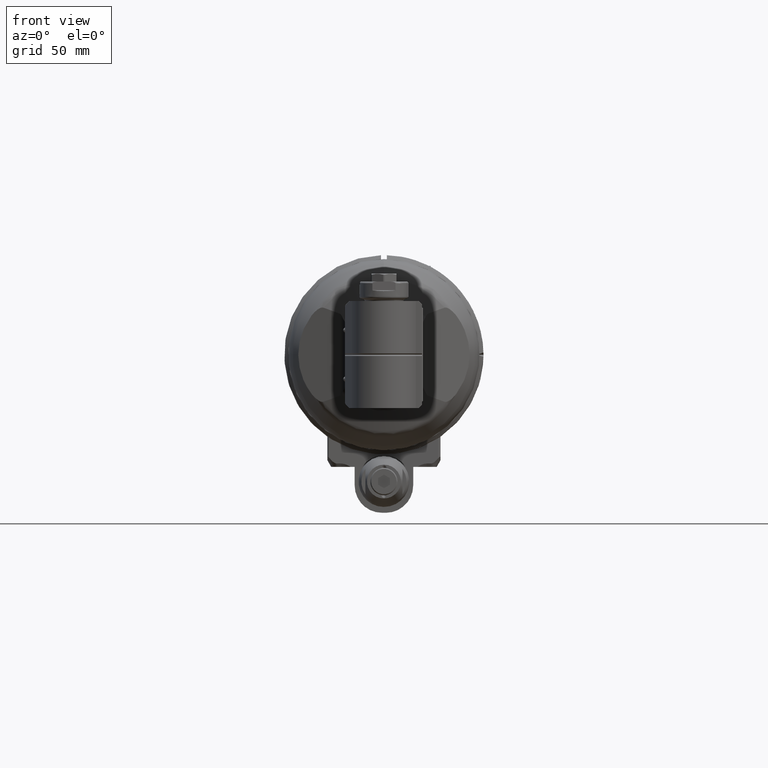
[diagram: clean part render]
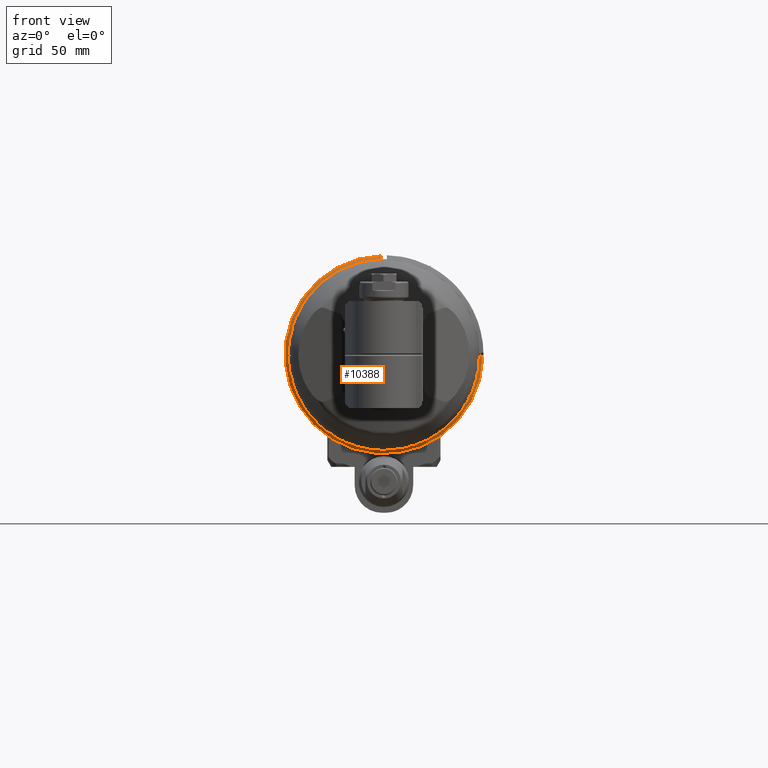
[diagram: same view with one face highlighted and labeled with its STEP entity id]
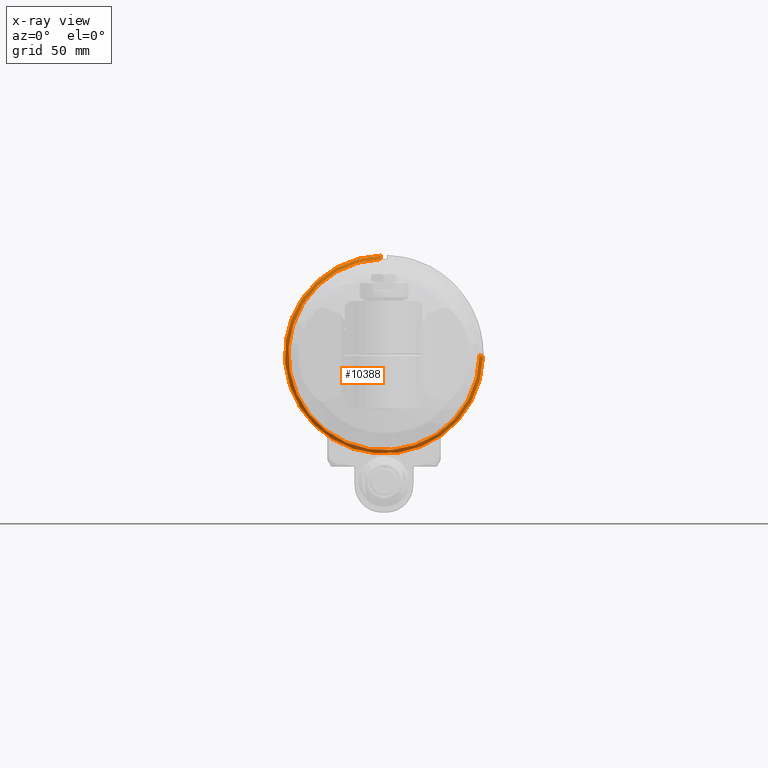
[diagram: x-ray of the same camera — body ghosted, the highlighted face saturated]
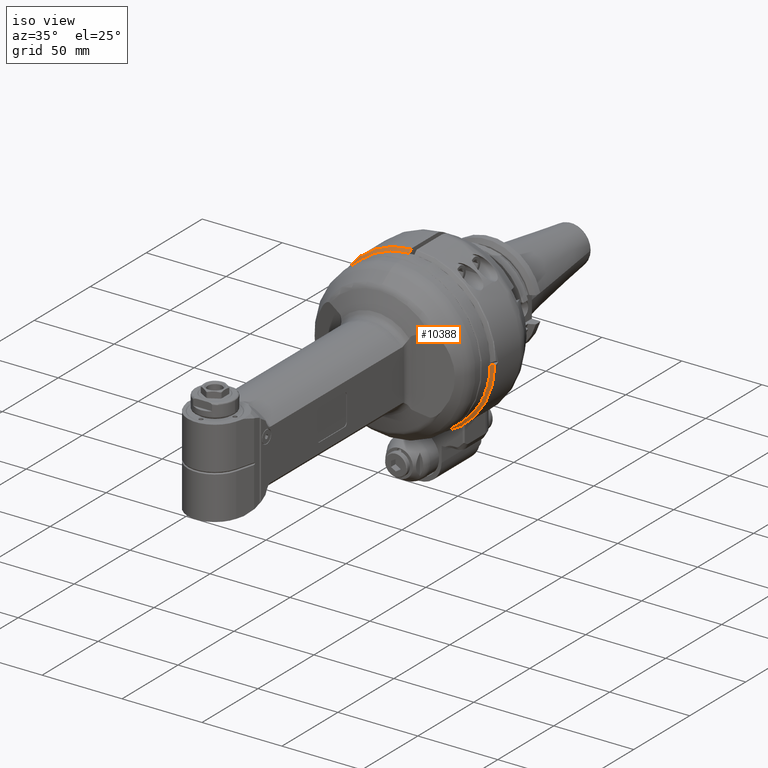
[diagram: same view with one face highlighted and labeled with its STEP entity id]
A machine part, front view. The second image highlights one B-rep face of the part: STEP entity #10388.
The next image is the same camera in x-ray: the body ghosted, the highlighted face saturated — about 0% of this face is hidden behind the body in this view.
A second angle (iso view) of the same face is appended — the face is thin or edge-on in the first view.
In plain terms, the highlighted conical surface has half-angle 45 deg.
Its self-contained STEP definition (entity closure, byte-faithful):
#128=CONICAL_SURFACE('',#11529,49.85355339059,0.785398163397448);
#388=(
BOUNDED_CURVE()
B_SPLINE_CURVE(2,(#19412,#19413,#19414),.UNSPECIFIED.,.F.,.F.)
B_SPLINE_CURVE_WITH_KNOTS((3,3),(0.508727233088621,0.764831043681162),
 .UNSPECIFIED.)
CURVE()
GEOMETRIC_REPRESENTATION_ITEM()
RATIONAL_B_SPLINE_CURVE((1.00136985167552,1.00128834032644,1.00077759520502))
REPRESENTATION_ITEM('')
);
#389=(
BOUNDED_CURVE()
B_SPLINE_CURVE(2,(#19430,#19431,#19432),.UNSPECIFIED.,.F.,.F.)
B_SPLINE_CURVE_WITH_KNOTS((3,3),(-5.67826879781545,-5.35900055385126),
 .UNSPECIFIED.)
CURVE()
GEOMETRIC_REPRESENTATION_ITEM()
RATIONAL_B_SPLINE_CURVE((1.00308912931936,1.00557756147216,1.00777639680923))
REPRESENTATION_ITEM('')
);
#1181=FACE_OUTER_BOUND('',#1864,.T.);
#1864=EDGE_LOOP('',(#8394,#8395,#8396,#8397));
#3908=CIRCLE('',#11525,49.);
#3911=CIRCLE('',#11530,50.70710678119);
#4737=VERTEX_POINT('',#19409);
#4738=VERTEX_POINT('',#19411);
#4740=VERTEX_POINT('',#19420);
#4743=VERTEX_POINT('',#19429);
#6035=EDGE_CURVE('',#4738,#4737,#388,.T.);
#6040=EDGE_CURVE('',#4740,#4737,#3908,.T.);
#6043=EDGE_CURVE('',#4740,#4743,#389,.T.);
#6044=EDGE_CURVE('',#4738,#4743,#3911,.T.);
#8394=ORIENTED_EDGE('',*,*,#6035,.T.);
#8395=ORIENTED_EDGE('',*,*,#6040,.F.);
#8396=ORIENTED_EDGE('',*,*,#6043,.T.);
#8397=ORIENTED_EDGE('',*,*,#6044,.F.);
#10388=ADVANCED_FACE('',(#1181),#128,.T.);
#11525=AXIS2_PLACEMENT_3D('',#19422,#13919,#13920);
#11529=AXIS2_PLACEMENT_3D('',#19428,#13927,#13928);
#11530=AXIS2_PLACEMENT_3D('',#19433,#13929,#13930);
#13919=DIRECTION('center_axis',(0.,-1.,0.));
#13920=DIRECTION('ref_axis',(-0.0306122448979601,0.,0.999531335407904));
#13927=DIRECTION('center_axis',(0.,1.,0.));
#13928=DIRECTION('ref_axis',(0.,0.,-1.));
#13929=DIRECTION('center_axis',(0.,1.,0.));
#13930=DIRECTION('ref_axis',(0.,0.,-1.));
#19409=CARTESIAN_POINT('',(48.99810120193,0.,-0.4313682945262));
#19411=CARTESIAN_POINT('',(50.69626604881,1.707106781187,-1.048468801146));
#19412=CARTESIAN_POINT('Ctrl Pts',(50.6962660488093,1.70710678118947,-1.04846880114116));
#19413=CARTESIAN_POINT('Ctrl Pts',(49.8301452018414,0.834681228380691,-0.73459892132407));
#19414=CARTESIAN_POINT('Ctrl Pts',(48.9981012019286,2.8585443882932E-12,
-0.431368294522119));
#19420=CARTESIAN_POINT('',(-1.5,0.,48.97703543499));
#19422=CARTESIAN_POINT('Origin',(0.,-5.684341886081E-14,0.));
#19428=CARTESIAN_POINT('Origin',(0.,0.8535533905933,0.));
#19429=CARTESIAN_POINT('',(-1.50000000005422,1.70710677935587,50.6849156843801));
#19430=CARTESIAN_POINT('Ctrl Pts',(-1.5,3.75311690189205E-12,48.9770354349863));
#19431=CARTESIAN_POINT('Ctrl Pts',(-1.5,0.838926273321373,49.8163550676961));
#19432=CARTESIAN_POINT('Ctrl Pts',(-1.5,1.70710677935809,50.6849156843785));
#19433=CARTESIAN_POINT('Origin',(0.,1.707106781187,0.));